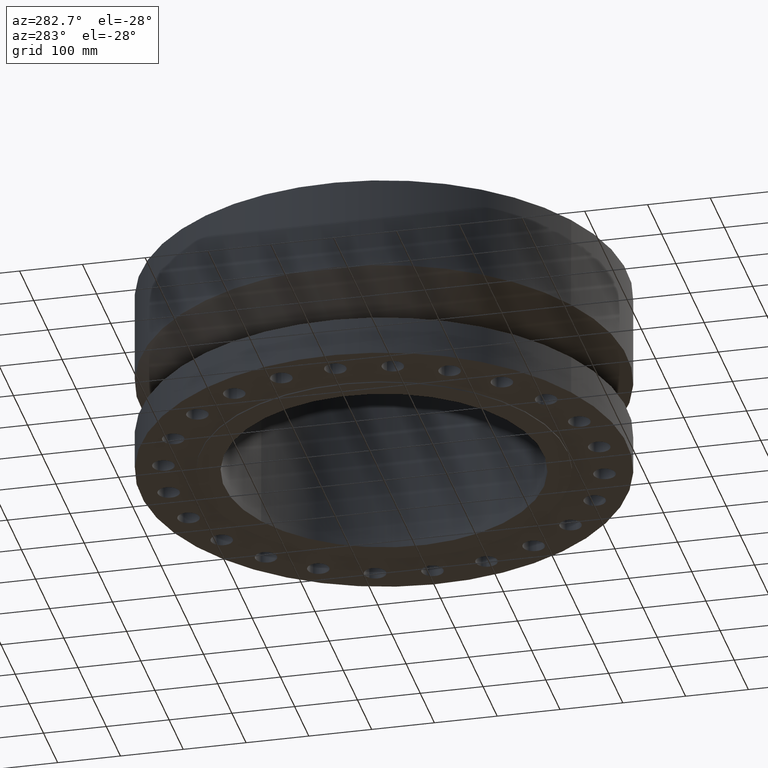
[diagram: clean part render]
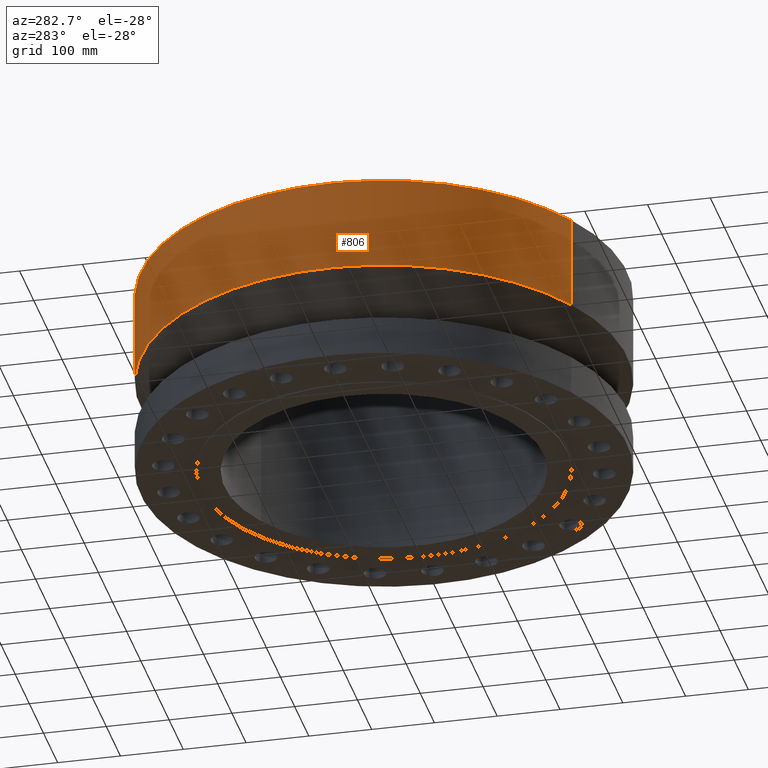
[diagram: same view with one face highlighted and labeled with its STEP entity id]
A machine part, auxiliary view. The second image highlights one B-rep face of the part: STEP entity #806.
In plain terms, the highlighted cylindrical surface (partial cylindrical patch) has radius 387.35 mm, axis along (0, 0, -1).
Its self-contained STEP definition (entity closure, byte-faithful):
#543=AXIS2_PLACEMENT_3D('Cylinder Axis2P3D',#540,#541,#542) ;
#759=AXIS2_PLACEMENT_3D('Circle Axis2P3D',#757,#758,$) ;
#797=AXIS2_PLACEMENT_3D('Circle Axis2P3D',#795,#796,$) ;
#540=CARTESIAN_POINT('Axis2P3D Location',(0.,0.,5.93750000002)) ;
#735=CARTESIAN_POINT('Vertex',(7.31123946374,13.3831340689,6.06792249333)) ;
#742=CARTESIAN_POINT('Vertex',(-7.31123946374,-13.3831340689,6.06792249333)) ;
#757=CARTESIAN_POINT('Axis2P3D Location',(0.,0.,6.06792249333)) ;
#769=CARTESIAN_POINT('Line Origine',(7.31123946374,13.3831340689,9.00271124669)) ;
#773=CARTESIAN_POINT('Vertex',(7.31123946374,13.3831340689,11.9375)) ;
#780=CARTESIAN_POINT('Vertex',(-7.31123946374,-13.3831340689,11.9375)) ;
#783=CARTESIAN_POINT('Line Origine',(-7.31123946374,-13.3831340689,9.00271124669)) ;
#795=CARTESIAN_POINT('Axis2P3D Location',(0.,0.,11.9375)) ;
#541=DIRECTION('Axis2P3D Direction',(0.,0.,-0.0393700787402)) ;
#542=DIRECTION('Axis2P3D XDirection',(-0.0188750212049,-0.0345504945626,0.)) ;
#758=DIRECTION('Axis2P3D Direction',(-0.,0.,0.0393700787402)) ;
#770=DIRECTION('Vector Direction',(0.,0.,-0.0393700787402)) ;
#784=DIRECTION('Vector Direction',(0.,0.,-0.0393700787402)) ;
#796=DIRECTION('Axis2P3D Direction',(0.,0.,-0.0393700787402)) ;
#771=VECTOR('Line Direction',#770,0.0393700787402) ;
#785=VECTOR('Line Direction',#784,0.0393700787402) ;
#801=ORIENTED_EDGE('',*,*,#761,.F.) ;
#802=ORIENTED_EDGE('',*,*,#787,.T.) ;
#803=ORIENTED_EDGE('',*,*,#799,.T.) ;
#804=ORIENTED_EDGE('',*,*,#775,.F.) ;
#806=ADVANCED_FACE('PartBody',(#805),#544,.T.) ;
#760=CIRCLE('generated circle',#759,15.2500000001) ;
#798=CIRCLE('generated circle',#797,15.2500000001) ;
#544=CYLINDRICAL_SURFACE('generated cylinder',#543,15.2500000001) ;
#761=EDGE_CURVE('',#743,#736,#760,.F.) ;
#775=EDGE_CURVE('',#736,#774,#772,.F.) ;
#787=EDGE_CURVE('',#743,#781,#786,.F.) ;
#799=EDGE_CURVE('',#781,#774,#798,.T.) ;
#800=EDGE_LOOP('',(#801,#802,#803,#804)) ;
#805=FACE_OUTER_BOUND('',#800,.T.) ;
#772=LINE('Line',#769,#771) ;
#786=LINE('Line',#783,#785) ;
#736=VERTEX_POINT('',#735) ;
#743=VERTEX_POINT('',#742) ;
#774=VERTEX_POINT('',#773) ;
#781=VERTEX_POINT('',#780) ;